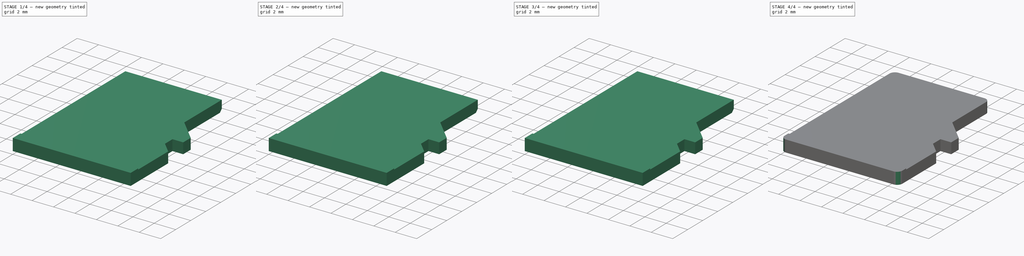
[diagram: build sequence overview — one tinted view per stage of 4, left to right]
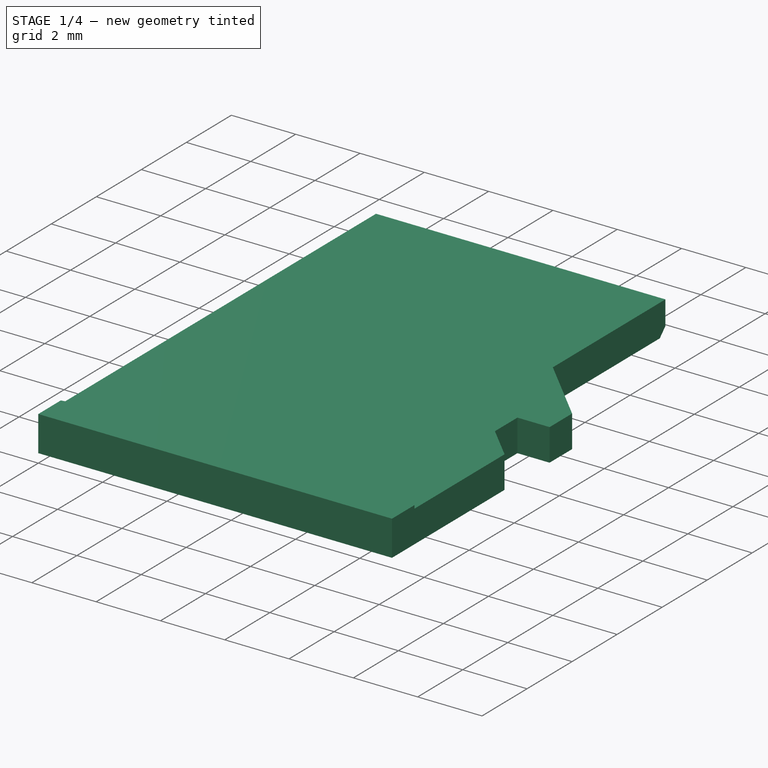
[diagram: stage 1 of 4 — iso view after this stage's code; geometry added in this stage tinted green]
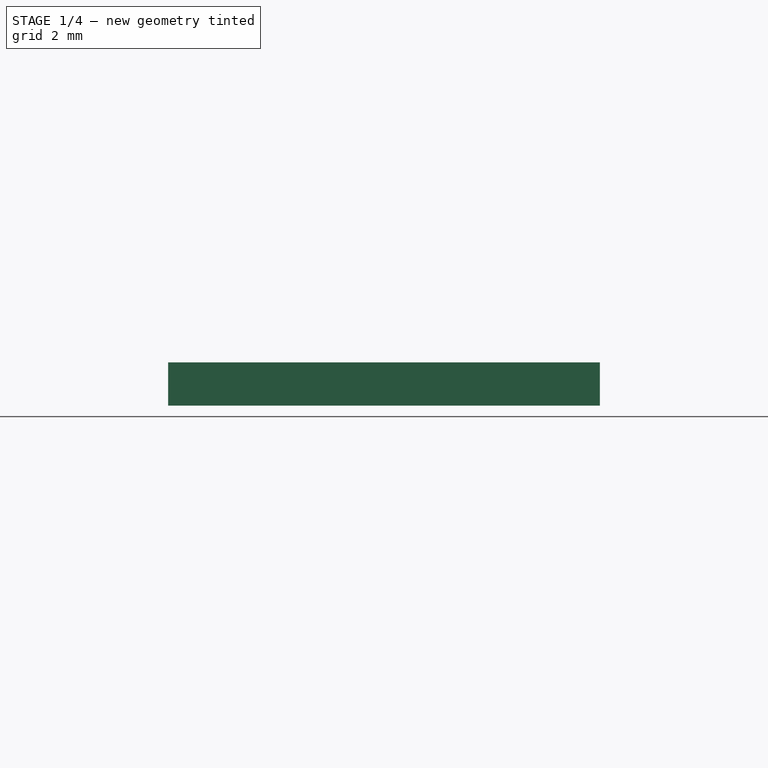
[diagram: stage 1 of 4 — front view after this stage's code; geometry added in this stage tinted green]
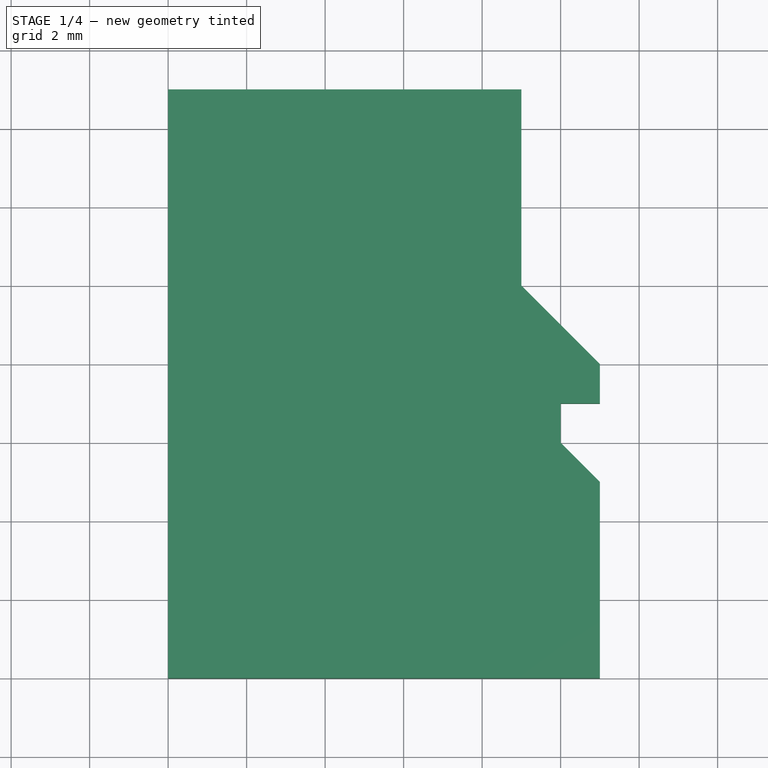
[diagram: stage 1 of 4 — top view after this stage's code; geometry added in this stage tinted green]
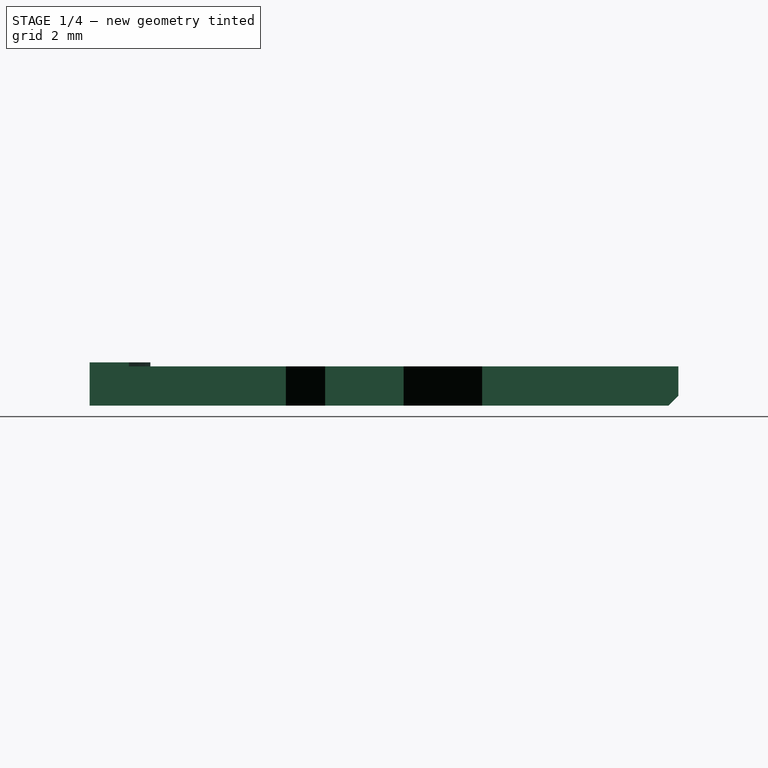
[diagram: stage 1 of 4 — right view after this stage's code; geometry added in this stage tinted green]
FCSTD DOCUMENT  (FreeCAD 0.16R6703 (Git))
Label: Generic_MICRO_SD_CARD
License: All rights reserved
LicenseURL: http://en.wikipedia.org/wiki/All_rights_reserved
objects: Sketcher::SketchObject×7, PartDesign::Pad×7, Part::FeaturePython×2, Part::Chamfer×1, Part::MultiFuse×1, Part::Fillet×1, Part::Feature×1
note: 27 computed .brp shape members not serialized (recipe doc carries the construction recipe); baked Part::Feature solids carry a one-line shape summary decoded from their .brp

FEATURE [Sketcher::SketchObject] Sketch
  sketch-geometry (12):
    g0: LineSegment StartX=0 StartY=0 StartZ=0 EndX=0 EndY=15 EndZ=0
    g1: LineSegment StartX=0 StartY=15 StartZ=0 EndX=9 EndY=15 EndZ=0
    g2: LineSegment StartX=9 StartY=15 StartZ=0 EndX=9 EndY=10 EndZ=0
    g3: GeomPoint [constr] X=0 Y=0 Z=0
    g4: LineSegment StartX=0 StartY=0 StartZ=0 EndX=11 EndY=0 EndZ=0
    g5: LineSegment StartX=11 StartY=0 StartZ=0 EndX=11 EndY=5 EndZ=0
    g6: LineSegment StartX=9 StartY=10 StartZ=0 EndX=11 EndY=8 EndZ=0
    g7: GeomPoint [constr] X=11 Y=8 Z=0
    g8: LineSegment StartX=11 StartY=8 StartZ=0 EndX=11 EndY=7 EndZ=0
    g9: LineSegment StartX=11 StartY=7 StartZ=0 EndX=10 EndY=7 EndZ=0
    g10: LineSegment StartX=10 StartY=7 StartZ=0 EndX=10 EndY=6 EndZ=0
    g11: LineSegment StartX=10 StartY=6 StartZ=0 EndX=11 EndY=5 EndZ=0
  constraints (25):
    c: Coincident(g0,g-1)
    c: PointOnObject(g0,g-2)
    c: Distance(g0) = 15
    c: Coincident(g1,g0)
    c: Horizontal(g1)
    c: Distance(g1) = 9
    c: Coincident(g2,g1)
    c: Vertical(g2)
    c: Coincident(g3,g-1)
    c: Coincident(g4,g-1)
    c: Horizontal(g4)
    c: Distance(g4) = 11
    c: Distance(g2) = 5
    c: Coincident(g5,g4)
    c: Vertical(g5)
    c: Coincident(g6,g2)
    c: Coincident(g7,g6)
    c: Coincident(g8,g6)
    c: Vertical(g8)
    c: Coincident(g9,g8)
    c: Horizontal(g9)
    c: Coincident(g10,g9)
    c: Vertical(g10)
    c: Coincident(g11,g10)
    c: Coincident(g11,g5)
FEATURE [PartDesign::Pad] Pad  label="microSD_shape"
  Length = 1
  Length2 = 100
  Sketch = -> Sketch
  Type = 0
FEATURE [Sketcher::SketchObject] Sketch001  label="nail_holder"
  Placement = pos=(0,0,1) rot=(0,0,1;0rad)
  Support = -> Pad [Face12]
  sketch-geometry (4):
    g0: LineSegment StartX=0 StartY=1 StartZ=0 EndX=0 EndY=0 EndZ=0
    g1: LineSegment StartX=0 StartY=0 StartZ=0 EndX=11 EndY=0 EndZ=0
    g2: LineSegment StartX=11 StartY=0 StartZ=0 EndX=11 EndY=1 EndZ=0
    g3: ArcOfCircle CenterX=5.5 CenterY=-26.2974 CenterZ=0 NormalX=0 NormalY=0 NormalZ=1 Radius=27.846 StartAngle=1.37197 EndAngle=1.76962
  constraints (11):
    c: PointOnObject(g0,g-2)
    c: Coincident(g0,g-1)
    c: Coincident(g0,g1)
    c: Horizontal(g1)
    c: Coincident(g1,g2)
    c: Vertical(g2)
    c: Coincident(g3,g0)
    c: Distance(g0) = 1
    c: Distance(g2) = 1
    c: DistanceX(g-1,g3) = 5.5
    c: Coincident(g3,g2)
FEATURE [PartDesign::Pad] Pad001  label="nail_holder001"
  Length = 0.1
  Length2 = 100
  Sketch = -> Sketch001
  Type = 0
FEATURE [Part::Chamfer] Chamfer  label="SD_micro"
  Base = -> Pad001
  Edges = 1 edges r=0.25: [Edge2]
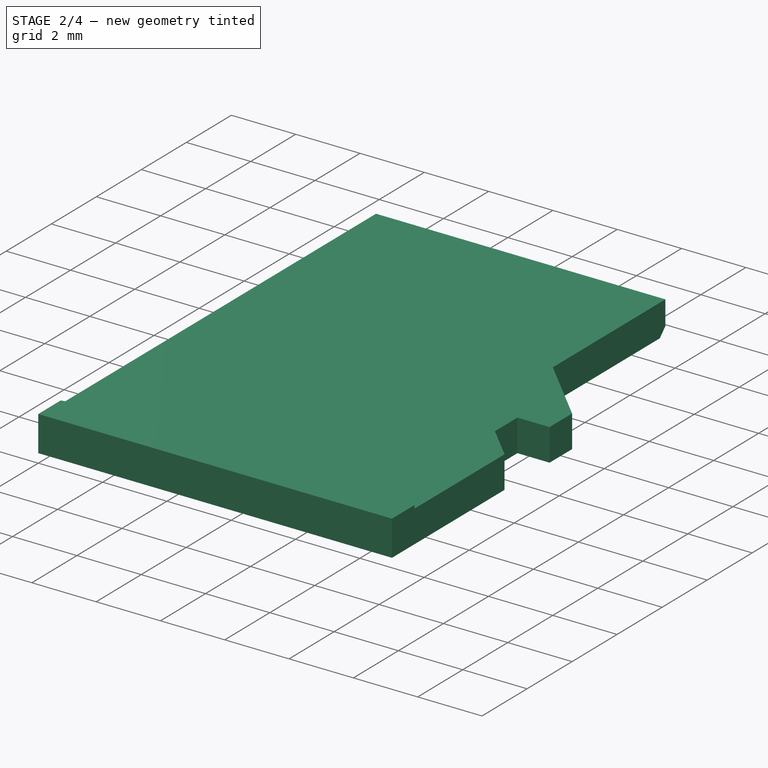
[diagram: stage 2 of 4 — iso view after this stage's code; geometry added in this stage tinted green]
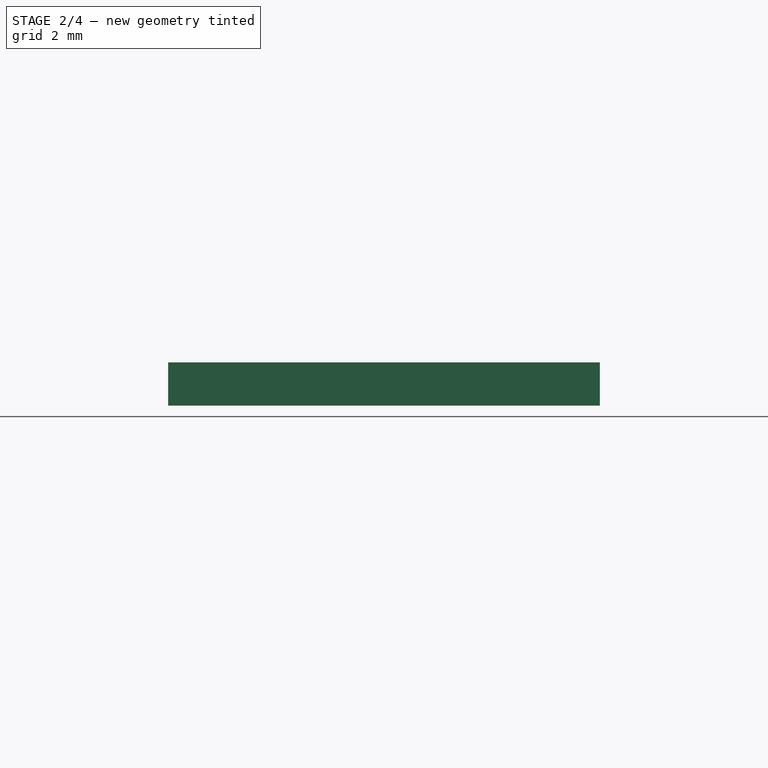
[diagram: stage 2 of 4 — front view after this stage's code; geometry added in this stage tinted green]
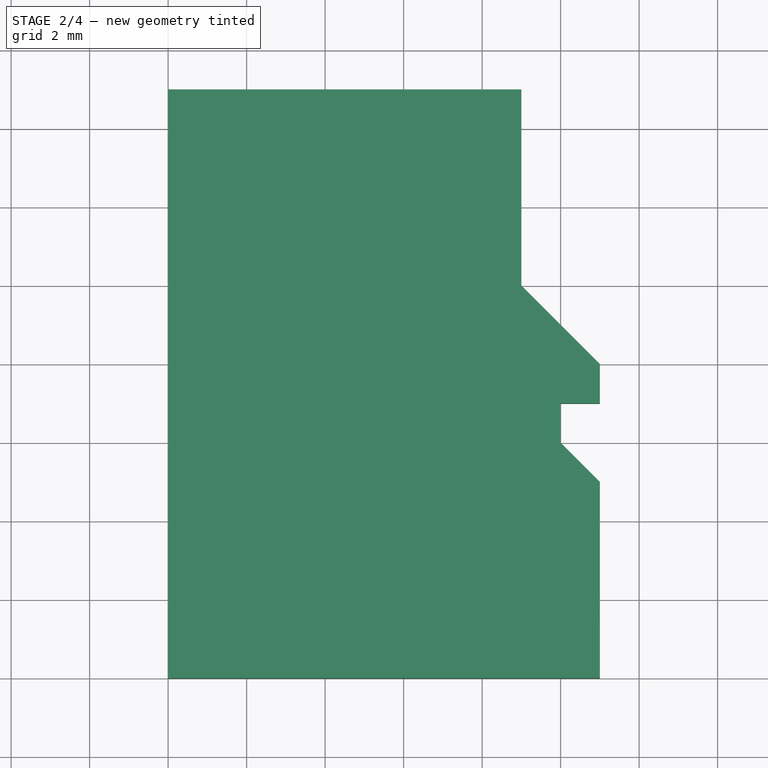
[diagram: stage 2 of 4 — top view after this stage's code; geometry added in this stage tinted green]
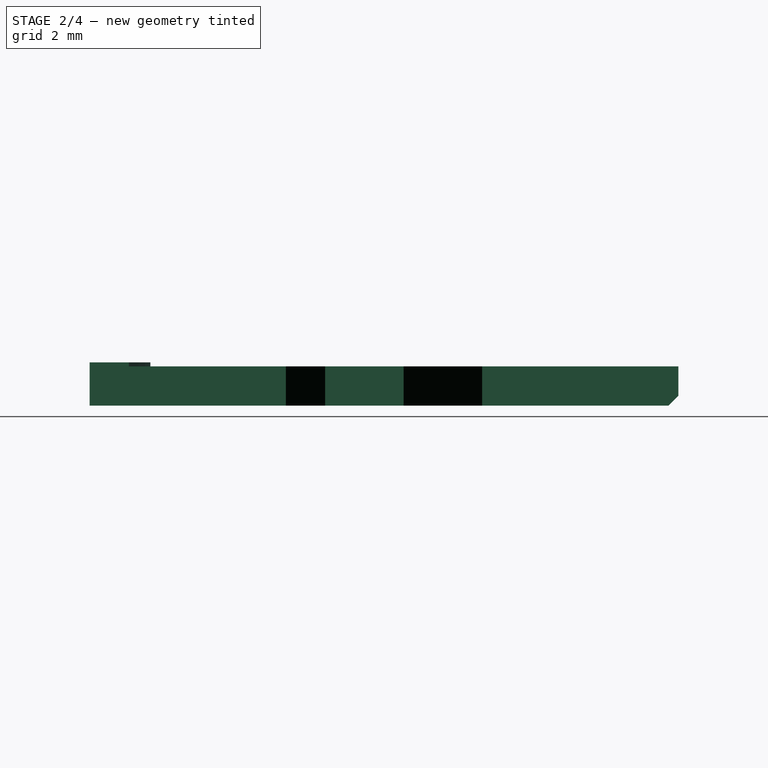
[diagram: stage 2 of 4 — right view after this stage's code; geometry added in this stage tinted green]
FEATURE [Sketcher::SketchObject] Sketch005
  Placement = pos=(4.02,10,0) rot=(1,0,0;3.14159rad)
  sketch-geometry (4):
    g0: LineSegment StartX=0.509951 StartY=-1 StartZ=0 EndX=1.46478 EndY=-1 EndZ=0
    g1: LineSegment StartX=1.46478 StartY=-1 StartZ=0 EndX=1.46478 EndY=-4.54167 EndZ=0
    g2: LineSegment StartX=1.46478 StartY=-4.54167 StartZ=0 EndX=0.509951 EndY=-4.54167 EndZ=0
    g3: LineSegment StartX=0.509951 StartY=-4.54167 StartZ=0 EndX=0.509951 EndY=-1 EndZ=0
  constraints (8):
    c: Coincident(g0,g1)
    c: Coincident(g1,g2)
    c: Coincident(g2,g3)
    c: Coincident(g3,g0)
    c: Horizontal(g0)
    c: Horizontal(g2)
    c: Vertical(g1)
    c: Vertical(g3)
FEATURE [PartDesign::Pad] Pad005  label="long_contact001"
  Length = 0.001
  Length2 = 100
  Placement = pos=(4.02,10,0) rot=(1,0,0;3.14159rad)
  Sketch = -> Sketch005
  Type = 0
FEATURE [Sketcher::SketchObject] Sketch006
  Placement = pos=(0,10,0) rot=(1,0,0;3.14159rad)
  sketch-geometry (4):
    g0: LineSegment StartX=0.509951 StartY=-1 StartZ=0 EndX=1.46478 EndY=-1 EndZ=0
    g1: LineSegment StartX=1.46478 StartY=-1 StartZ=0 EndX=1.46478 EndY=-4 EndZ=0
    g2: LineSegment StartX=1.46478 StartY=-4 StartZ=0 EndX=0.509951 EndY=-4 EndZ=0
    g3: LineSegment StartX=0.509951 StartY=-4 StartZ=0 EndX=0.509951 EndY=-1 EndZ=0
  constraints (8):
    c: Coincident(g0,g1)
    c: Coincident(g1,g2)
    c: Coincident(g2,g3)
    c: Coincident(g3,g0)
    c: Horizontal(g0)
    c: Horizontal(g2)
    c: Vertical(g1)
    c: Vertical(g3)
FEATURE [PartDesign::Pad] Pad006  label="short_contact001"
  Length = 0.001
  Length2 = 100
  Placement = pos=(0,10,0) rot=(1,0,0;3.14159rad)
  Sketch = -> Sketch006
  Type = 0
FEATURE [Part::FeaturePython] Array001  label="short_contacts_3"  # Draft array (typed FeaturePython)
  Angle = 360
  ArrayType = 0
  Axis = (0,0,1)
  Base = -> Pad006
  Center = (0,0,0)
  Fuse = false
  IntervalAxis = (0,0,0)
  IntervalX = (1.005,0,0)
  IntervalY = (0,1,0)
  IntervalZ = (0,0,0)
  NumberPolar = 1
  NumberX = 3
  NumberY = 0
  NumberZ = 1
  Placement = pos=(5.025,0,0) rot=(0,0,1;0rad)
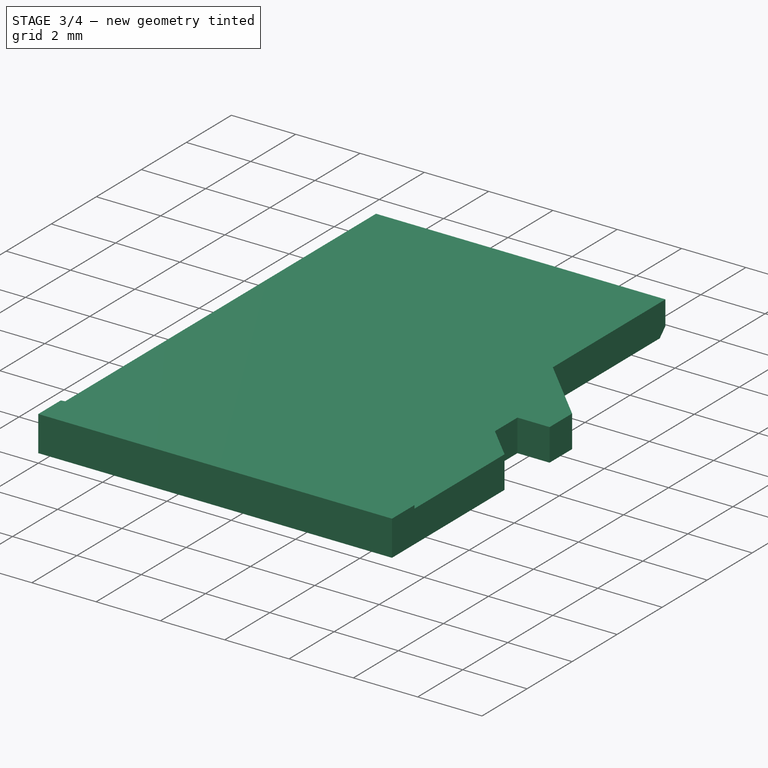
[diagram: stage 3 of 4 — iso view after this stage's code; geometry added in this stage tinted green]
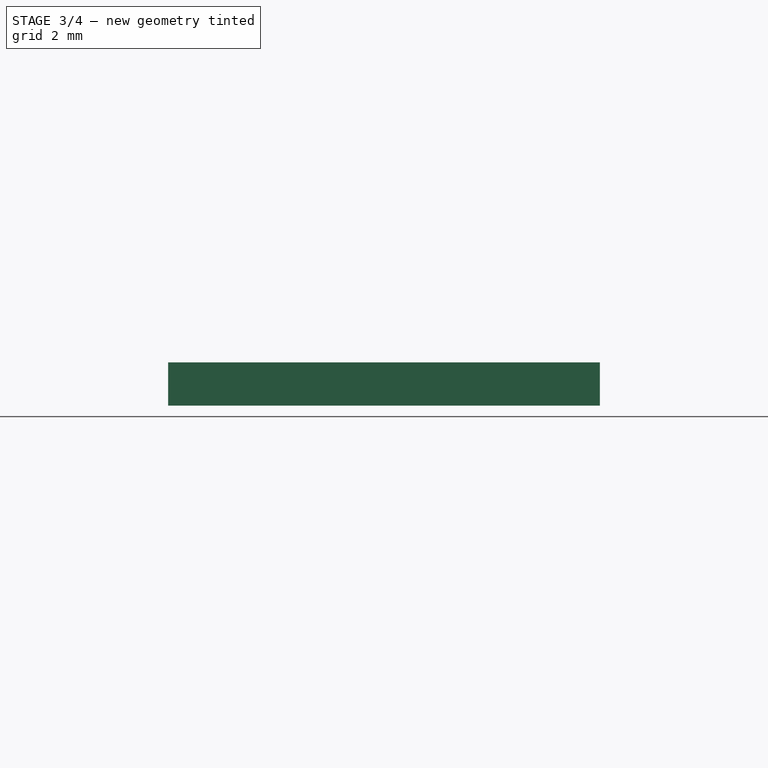
[diagram: stage 3 of 4 — front view after this stage's code; geometry added in this stage tinted green]
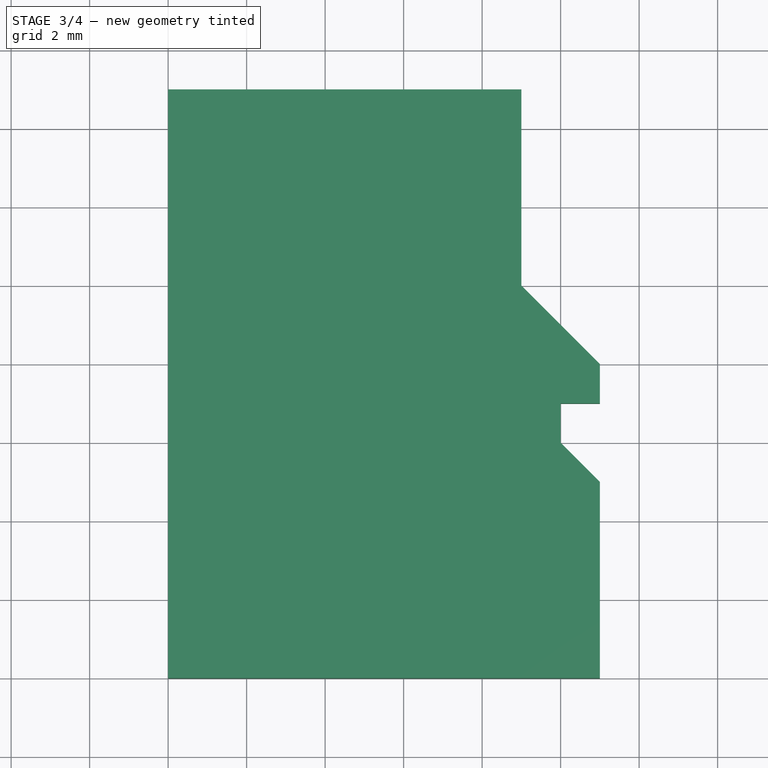
[diagram: stage 3 of 4 — top view after this stage's code; geometry added in this stage tinted green]
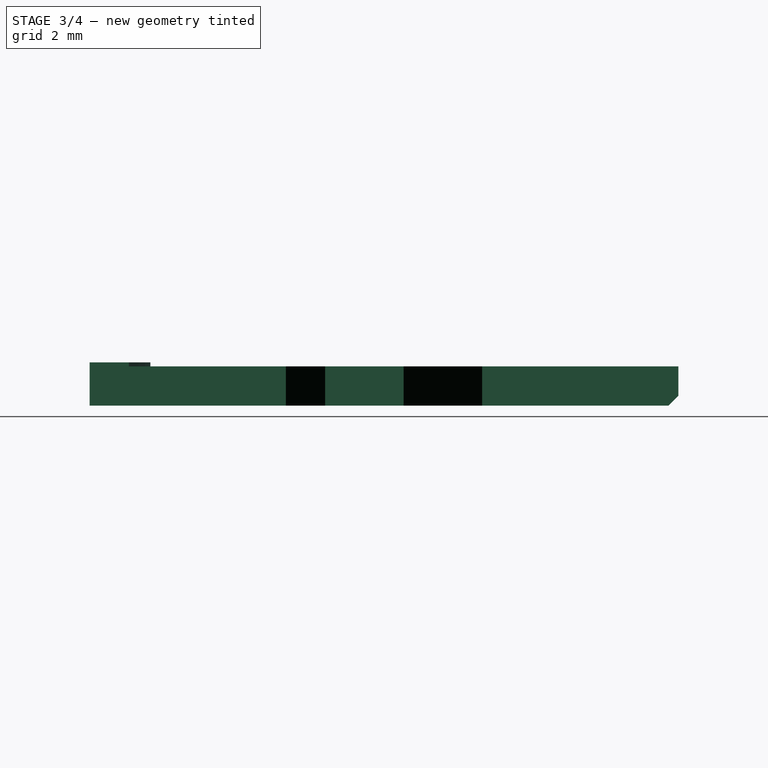
[diagram: stage 3 of 4 — right view after this stage's code; geometry added in this stage tinted green]
FEATURE [Sketcher::SketchObject] Sketch002
  Placement = pos=(0,10,0) rot=(1,0,0;3.14159rad)
  sketch-geometry (4):
    g0: LineSegment StartX=0.509951 StartY=-1 StartZ=0 EndX=1.46478 EndY=-1 EndZ=0
    g1: LineSegment StartX=1.46478 StartY=-1 StartZ=0 EndX=1.46478 EndY=-4 EndZ=0
    g2: LineSegment StartX=1.46478 StartY=-4 StartZ=0 EndX=0.509951 EndY=-4 EndZ=0
    g3: LineSegment StartX=0.509951 StartY=-4 StartZ=0 EndX=0.509951 EndY=-1 EndZ=0
  constraints (8):
    c: Coincident(g0,g1)
    c: Coincident(g1,g2)
    c: Coincident(g2,g3)
    c: Coincident(g3,g0)
    c: Horizontal(g0)
    c: Horizontal(g2)
    c: Vertical(g1)
    c: Vertical(g3)
FEATURE [PartDesign::Pad] Pad002  label="short_contact"
  Length = 0.001
  Length2 = 100
  Placement = pos=(0,10,0) rot=(1,0,0;3.14159rad)
  Sketch = -> Sketch002
  Type = 0
FEATURE [Sketcher::SketchObject] Sketch003
  Placement = pos=(2.01,10,0) rot=(1,0,0;3.14159rad)
  sketch-geometry (4):
    g0: LineSegment StartX=0.509951 StartY=-1 StartZ=0 EndX=1.46478 EndY=-1 EndZ=0
    g1: LineSegment StartX=1.46478 StartY=-1 StartZ=0 EndX=1.46478 EndY=-4.54167 EndZ=0
    g2: LineSegment StartX=1.46478 StartY=-4.54167 StartZ=0 EndX=0.509951 EndY=-4.54167 EndZ=0
    g3: LineSegment StartX=0.509951 StartY=-4.54167 StartZ=0 EndX=0.509951 EndY=-1 EndZ=0
  constraints (8):
    c: Coincident(g0,g1)
    c: Coincident(g1,g2)
    c: Coincident(g2,g3)
    c: Coincident(g3,g0)
    c: Horizontal(g0)
    c: Horizontal(g2)
    c: Vertical(g1)
    c: Vertical(g3)
FEATURE [PartDesign::Pad] Pad003  label="long_contact"
  Length = 0.001
  Length2 = 100
  Placement = pos=(2.01,10,0) rot=(1,0,0;3.14159rad)
  Sketch = -> Sketch003
  Type = 0
FEATURE [Sketcher::SketchObject] Sketch004
  Placement = pos=(3.015,10,0) rot=(1,0,0;3.14159rad)
  sketch-geometry (4):
    g0: LineSegment StartX=0.509951 StartY=-1 StartZ=0 EndX=1.46478 EndY=-1 EndZ=0
    g1: LineSegment StartX=1.46478 StartY=-1 StartZ=0 EndX=1.46478 EndY=-4 EndZ=0
    g2: LineSegment StartX=1.46478 StartY=-4 StartZ=0 EndX=0.509951 EndY=-4 EndZ=0
    g3: LineSegment StartX=0.509951 StartY=-4 StartZ=0 EndX=0.509951 EndY=-1 EndZ=0
  constraints (8):
    c: Coincident(g0,g1)
    c: Coincident(g1,g2)
    c: Coincident(g2,g3)
    c: Coincident(g3,g0)
    c: Horizontal(g0)
    c: Horizontal(g2)
    c: Vertical(g1)
    c: Vertical(g3)
FEATURE [PartDesign::Pad] Pad004
  Length = 0.001
  Length2 = 100
  Placement = pos=(3.015,10,0) rot=(1,0,0;3.14159rad)
  Sketch = -> Sketch004
  Type = 0
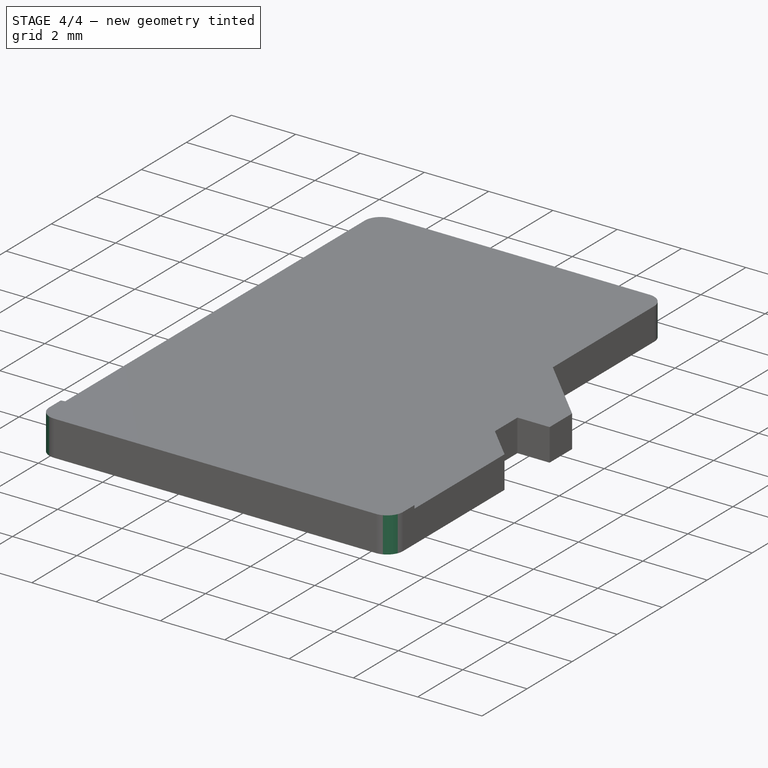
[diagram: stage 4 of 4 — iso view after this stage's code; geometry added in this stage tinted green]
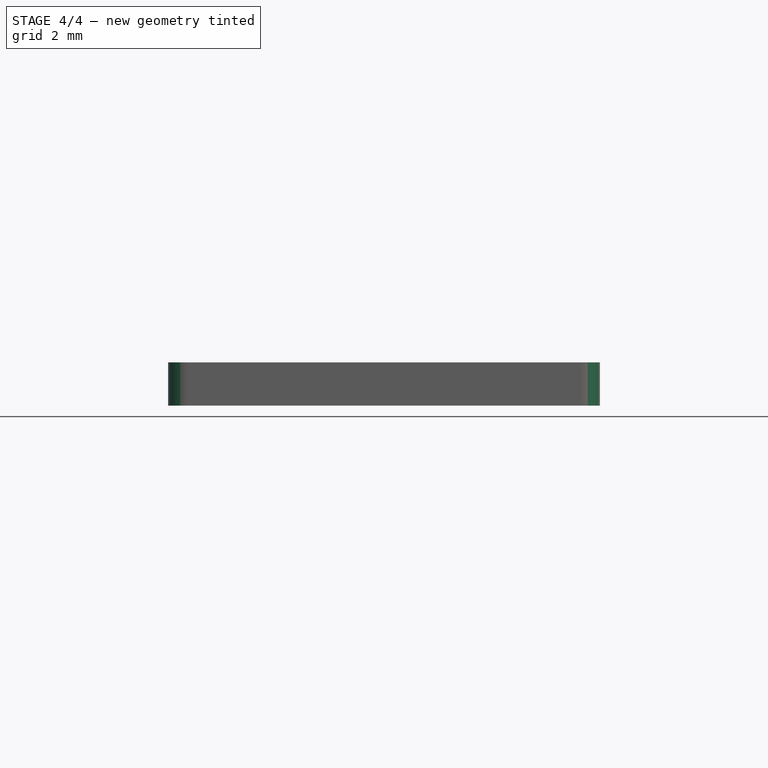
[diagram: stage 4 of 4 — front view after this stage's code; geometry added in this stage tinted green]
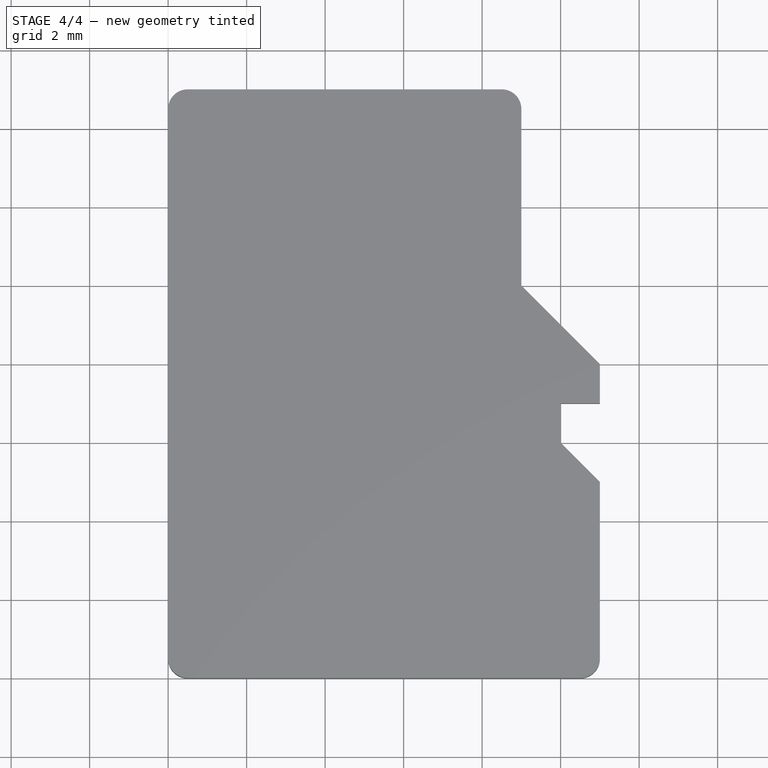
[diagram: stage 4 of 4 — top view after this stage's code; geometry added in this stage tinted green]
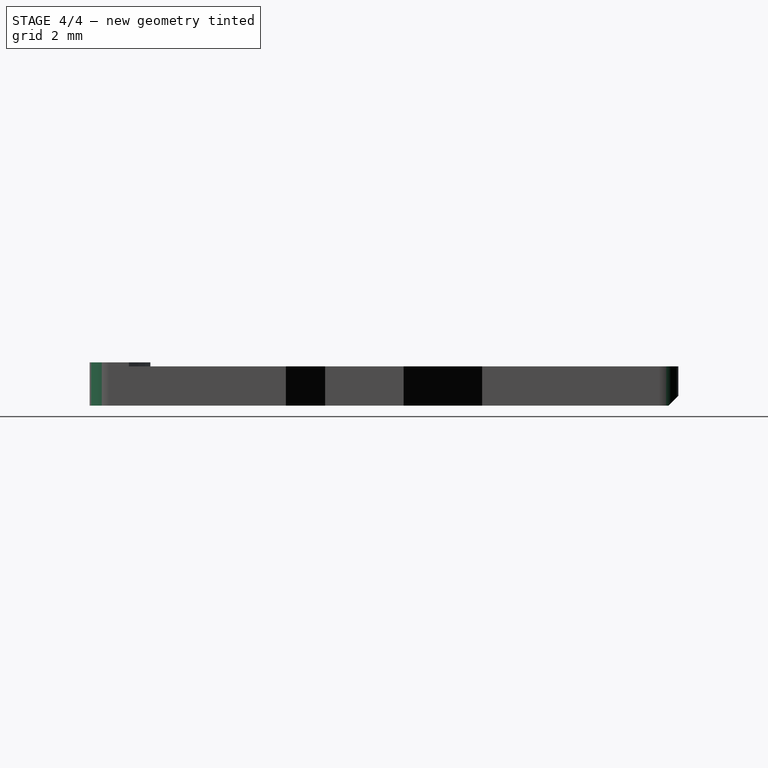
[diagram: stage 4 of 4 — right view after this stage's code; geometry added in this stage tinted green]
FEATURE [Part::FeaturePython] Array  label="short_contacts_2"  # Draft array (typed FeaturePython)
  Angle = 360
  ArrayType = 0
  Axis = (0,0,1)
  Base = -> Pad002
  Center = (0,0,0)
  Fuse = false
  IntervalAxis = (0,0,0)
  IntervalX = (1.005,0,0)
  IntervalY = (0,1,0)
  IntervalZ = (0,0,0)
  NumberPolar = 1
  NumberX = 2
  NumberY = 0
  NumberZ = 1
FEATURE [Part::MultiFuse] Fusion  label="GENERAL_MICROSD_CARD"
  Shapes = -> [Array,Pad003,Array001,Pad005,Pad004,Chamfer]
FEATURE [Part::Fillet] Fillet  label="MICRO_SD_CARD"
  Base = -> Fusion
  Edges = 4 edges r=0.5: [Edge51,Edge55,Edge59,Edge61]
FEATURE [Part::Feature] Fillet001  label="MICRO_SD_CARD001"
  shape: bbox 11 x 15 x 1.101 mm, 59 faces (baked)
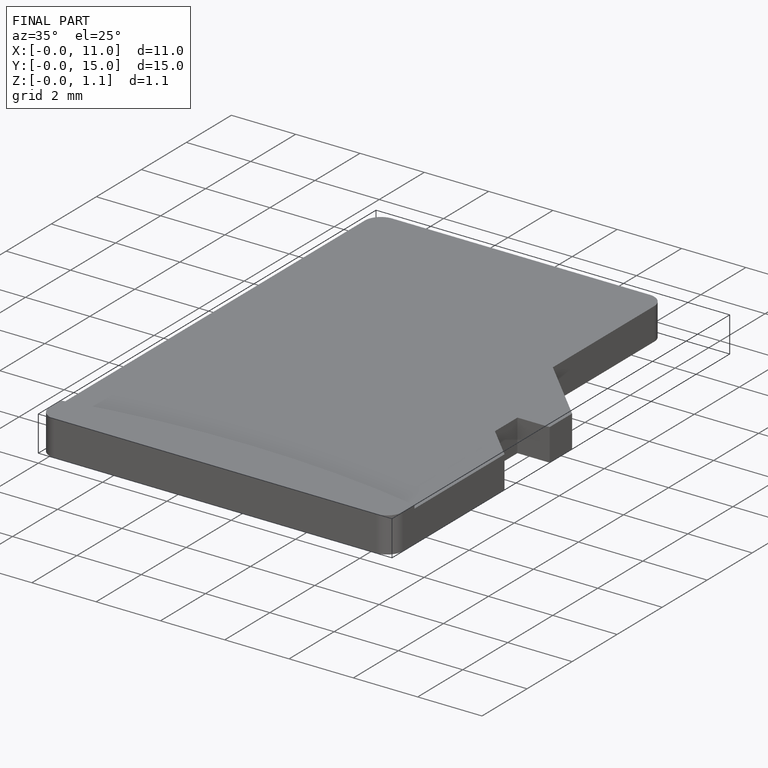
[diagram: finished part — iso view with bounding-box wireframe]
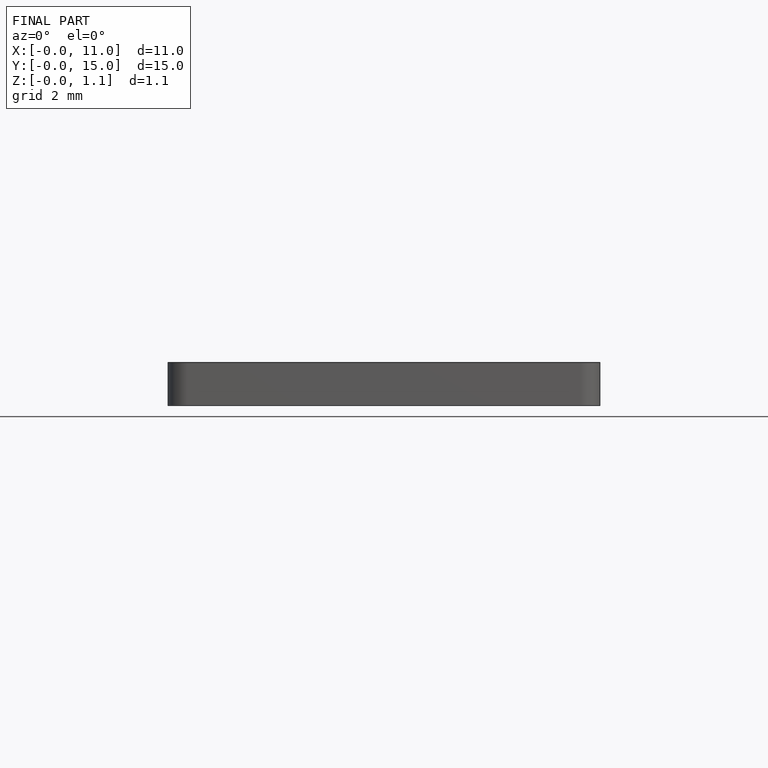
[diagram: finished part — front view with bounding-box wireframe]
